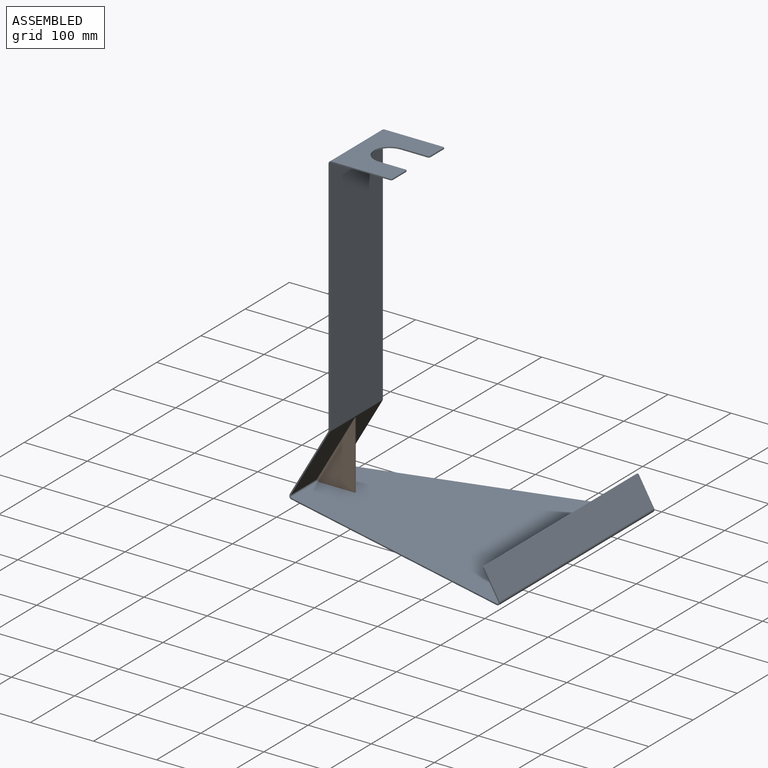
[diagram: assembled view]
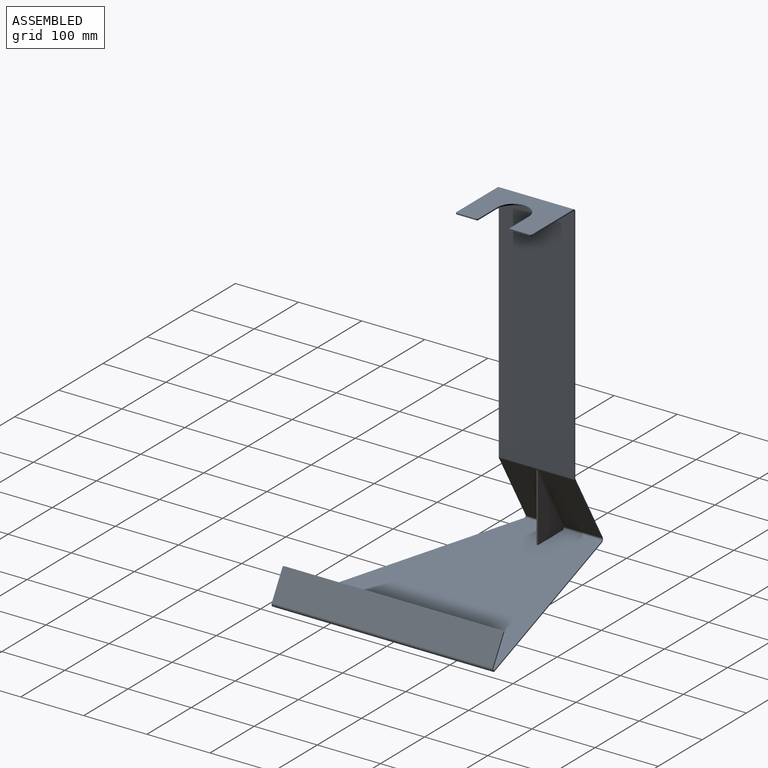
[diagram: assembled view, second angle]
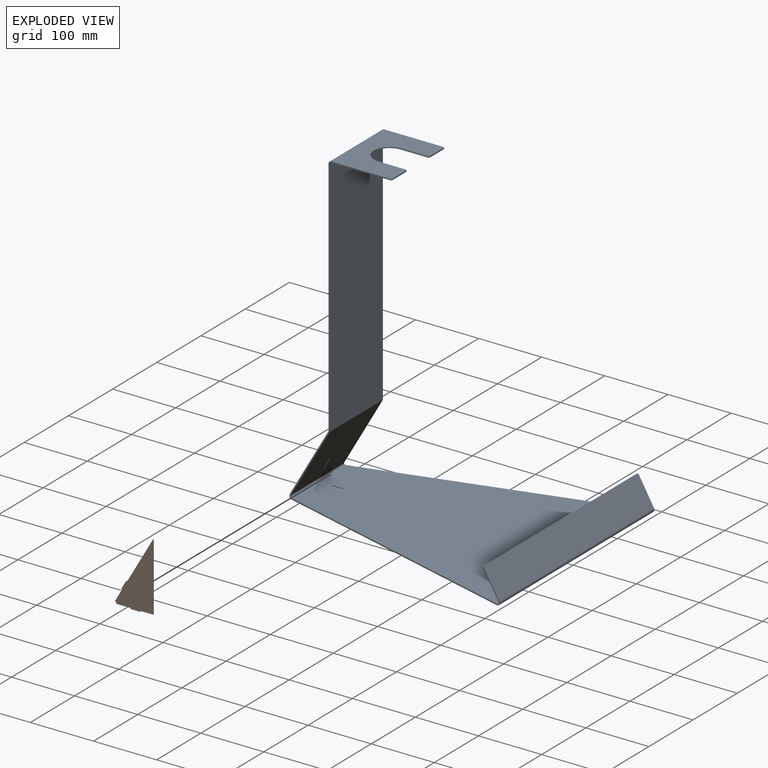
[diagram: exploded view]
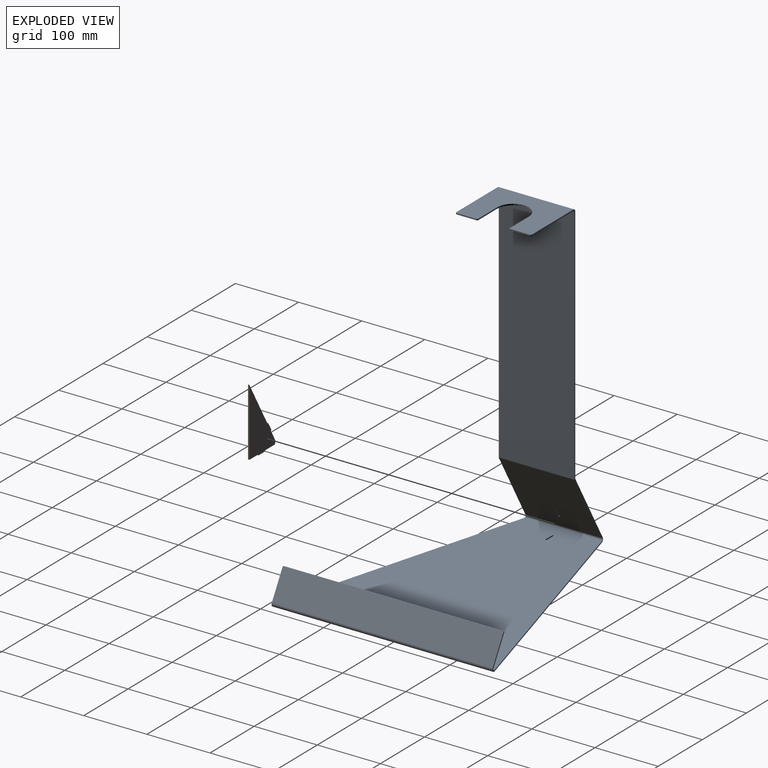
[diagram: exploded view, second angle]
ASSEMBLY  parts=2 mates=3
PART A: 56 faces, bbox 413.7x350x500 mm
  f0: plane 17x2mm, normal (0,-1,0), area 34mm2, adj f1,f5,f6,f7
  f1: plane 2.25x2mm, normal (-1,0,0), area 4.5mm2, adj f0,f2,f6,f7
  f2: plane 17x2mm, normal (0,1,0), area 34mm2, adj f1,f5,f6,f7
  f3: plane 405.1x113.07mm, normal (-0.27,-0.96,0), area 841.2mm2, adj f6,f7,f42,f52
  f4: plane 405.1x113.07mm, normal (-0.27,0.96,0), area 841.2mm2, adj f6,f7,f41,f53
  f5: plane 2.25x2mm, normal (1,0,0), area 4.5mm2, adj f0,f2,f6,f7
  f6: plane 405.1x350mm, normal (0,0,1), area 95942.8mm2, adj f0,f1,f2,f3,f4,f5,f43,f54
  f7: plane 405.1x350mm, normal (0,0,-1), area 95942.8mm2, adj f0,f1,f2,f3,f4,f5,f44,f55
  f8: plane 2.25x1.73mm, normal (0.5,0,0.87), area 4.5mm2, adj f9,f13,f14,f15
  f9: plane 15.72x10.23mm, normal (0,1,0), area 34mm2, adj f8,f10,f14,f15
  f10: plane 2.25x1.73mm, normal (-0.5,0,-0.87), area 4.5mm2, adj f9,f13,f14,f15
  f11: plane 106.6x62.7mm, normal (0,-1,0), area 243.9mm2, adj f14,f15,f38,f42
  f12: plane 106.6x62.7mm, normal (0,1,0), area 243.9mm2, adj f14,f15,f37,f41
  f13: plane 15.72x10.23mm, normal (0,-1,0), area 34mm2, adj f8,f10,f14,f15
  f14: plane 120x105.6mm, normal (0.87,0,-0.5), area 14594.1mm2, adj f8,f9,f10,f11,f12,f13,f39,f43
  f15: plane 120x105.6mm, normal (-0.87,0,0.5), area 14594.1mm2, adj f8,f9,f10,f11,f12,f13,f40,f44
  f16: plane 382.5x2mm, normal (0,-1,0), area 765mm2, adj f18,f19,f34,f38
  f17: plane 382.5x2mm, normal (0,1,0), area 765mm2, adj f18,f19,f33,f37
  f18: plane 382.5x120mm, normal (1,0,0), area 45900mm2, adj f16,f17,f35,f39
  f19: plane 382.5x120mm, normal (-1,0,0), area 45900mm2, adj f16,f17,f36,f40
  f20: cylinder r=25mm len=50mm, axis (0,0,-1), area 157.1mm2, adj f21,f26,f27,f28
  f21: plane 43x2mm, normal (0,1,0), area 86mm2, adj f20,f27,f28,f31
  f22: plane 31x2mm, normal (1,0,0), area 62mm2, adj f27,f28,f29,f31
  f23: plane 93.7x2mm, normal (0,-1,0), area 187.4mm2, adj f27,f28,f29,f34
  f24: plane 93.7x2mm, normal (0,1,0), area 187.4mm2, adj f27,f28,f30,f33
  f25: plane 31x2mm, normal (1,0,0), area 62mm2, adj f27,f28,f30,f32
  f26: plane 43x2mm, normal (0,-1,0), area 86mm2, adj f20,f27,f28,f32
  f27: plane 120x95.7mm, normal (0,0,-1), area 8248.8mm2, adj f20,f21,f22,f23,f24,f25,f26,f29
  f28: plane 120x95.7mm, normal (0,0,1), area 8248.8mm2, adj f20,f21,f22,f23,f24,f25,f26,f29
  f29: cylinder r=2mm len=2mm, axis (0,0,-1), area 6.3mm2, adj f22,f23,f27,f28
  f30: cylinder r=2mm len=2mm, axis (0,0,1), area 6.3mm2, adj f24,f25,f27,f28
  f31: cylinder r=2mm len=2mm, axis (0,0,-1), area 6.3mm2, adj f21,f22,f27,f28
  f32: cylinder r=2mm len=2mm, axis (0,0,-1), area 6.3mm2, adj f25,f26,f27,f28
  f33: plane 4.3x4.3mm, normal (0,1,0), area 10.4mm2, adj f17,f24,f35,f36
  f34: plane 4.3x4.3mm, normal (0,-1,0), area 10.4mm2, adj f16,f23,f35,f36
  f35: cylinder r=2.3mm len=120mm, axis (0,-1,0), area 433.5mm2, adj f18,f27,f33,f34
  f36: cylinder r=4.3mm len=120mm, axis (0,-1,0), area 810.5mm2, adj f19,f28,f33,f34
  f37: plane 2.31x2.15mm, normal (0,1,0), area 3.5mm2, adj f12,f17,f39,f40
  f38: plane 2.31x2.15mm, normal (0,-1,0), area 3.5mm2, adj f11,f16,f39,f40
  f39: cylinder r=4.3mm len=120mm, axis (0,-1,0), area 270.2mm2, adj f14,f18,f37,f38
  f40: cylinder r=2.3mm len=120mm, axis (0,-1,0), area 144.5mm2, adj f15,f19,f37,f38
  f41: bspline ~6.45x4.3mm, area 14.4mm2, adj f4,f12,f43,f44
  f42: bspline ~6.45x4.3mm, area 14.4mm2, adj f3,f11,f43,f44
  f43: cylinder r=2.3mm len=123.86mm, axis (0,-1,0), area 587.3mm2, adj f6,f14,f41,f42
  f44: cylinder r=4.3mm len=123.86mm, axis (0,-1,0), area 1098.1mm2, adj f7,f15,f41,f42
  f45: plane 42.82x25.88mm, normal (0,1,0), area 96.6mm2, adj f48,f49,f51,f53
  f46: plane 42.82x25.88mm, normal (0,-1,0), area 96.6mm2, adj f48,f49,f50,f52
  f47: plane 346x1.73mm, normal (-0.5,0,0.87), area 692mm2, adj f48,f49,f50,f51
  f48: plane 350x43.55mm, normal (-0.87,0,-0.5), area 17598.8mm2, adj f45,f46,f47,f50,f51,f54
  f49: plane 350x43.55mm, normal (0.87,0,0.5), area 17598.8mm2, adj f45,f46,f47,f50,f51,f55
  f50: cylinder r=2mm len=2.73mm, axis (0.87,0,0.5), area 6.3mm2, adj f46,f47,f48,f49
  f51: cylinder r=2mm len=2.73mm, axis (-0.87,0,-0.5), area 6.3mm2, adj f45,f47,f48,f49
  f52: plane 6.45x4.3mm, normal (0,-1,0), area 13.8mm2, adj f3,f46,f54,f55
  f53: plane 6.45x4.3mm, normal (0,1,0), area 13.8mm2, adj f4,f45,f54,f55
  f54: cylinder r=2.3mm len=350mm, axis (0,-1,0), area 1686mm2, adj f6,f48,f52,f53
  f55: cylinder r=4.3mm len=350mm, axis (0,-1,0), area 3152.1mm2, adj f7,f49,f52,f53
PART B: 14 faces, bbox 60x2x108.9 mm
  f0: plane 2x1.3mm, normal (0.5,0,-0.87), area 3mm2, adj f1,f11,f12,f13
  f1: plane 12.99x7.5mm, normal (0.87,0,0.5), area 30mm2, adj f0,f2,f12,f13
  f2: plane 2x1.3mm, normal (-0.5,0,0.87), area 3mm2, adj f1,f3,f12,f13
  f3: plane 71.45x41.25mm, normal (0.87,0,0.5), area 165mm2, adj f2,f4,f12,f13
  f4: plane 107.39x2mm, normal (-1,0,0), area 214.8mm2, adj f3,f5,f12,f13
  f5: plane 20.5x2mm, normal (0,0,-1), area 41mm2, adj f4,f6,f12,f13
  f6: plane 2x1.5mm, normal (-1,0,0), area 3mm2, adj f5,f7,f12,f13
  f7: plane 15x2mm, normal (0,0,-1), area 30mm2, adj f6,f8,f12,f13
  f8: plane 2x1.5mm, normal (1,0,0), area 3mm2, adj f7,f9,f12,f13
  f9: plane 22.5x2mm, normal (0,0,-1), area 45mm2, adj f8,f10,f12,f13
  f10: cylinder r=4mm len=3.46mm, axis (0,1,0), area 8.4mm2, adj f9,f11,f12,f13
  f11: plane 19.49x11.25mm, normal (0.87,0,0.5), area 45mm2, adj f0,f10,f12,f13
  f12: plane 108.89x60mm, normal (0,-1,0), area 3365.6mm2, adj f0,f1,f2,f3,f4,f5,f6,f7
  f13: plane 108.89x60mm, normal (0,1,0), area 3365.6mm2, adj f0,f1,f2,f3,f4,f5,f6,f7
PLACE A t=(-94.14,-2.15,46.92)mm fixed
PLACE B rot(axis=(0,0,1),180deg) t=(-205.67,-3.27,-251.08)mm
MATE planar B.f13 <-> A.f2  axis (0,-1,0) through (-164.46,-3.27,-215.48)mm
MATE planar A.f14 <-> B.f11  axis (0.87,0,-0.5) through (-173.15,-2.15,-194.76)mm
MATE planar A.f6 <-> B.f5  axis (0,0,1) through (33.17,-2.15,-251.08)mm
